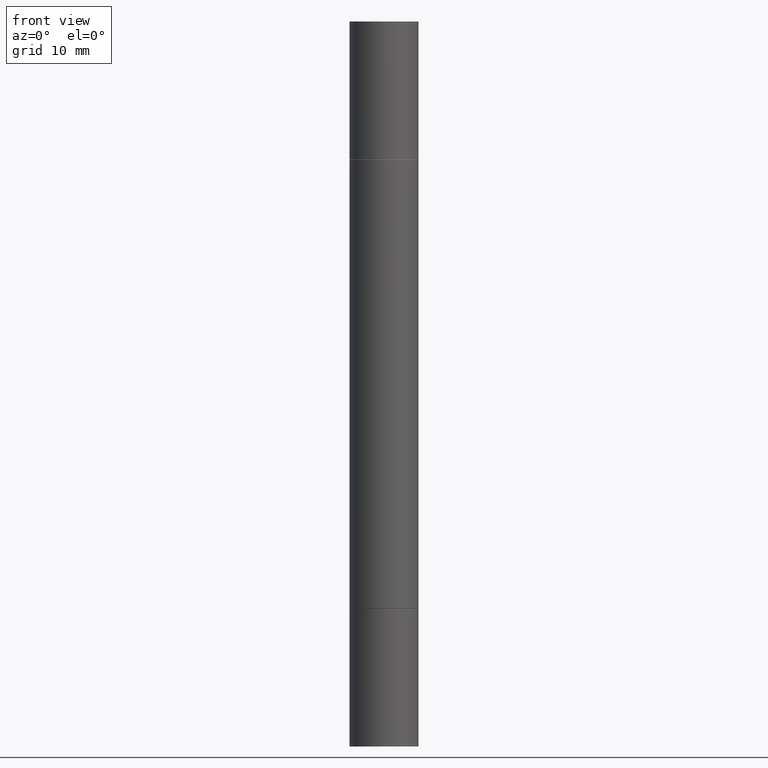
[diagram: clean part render]
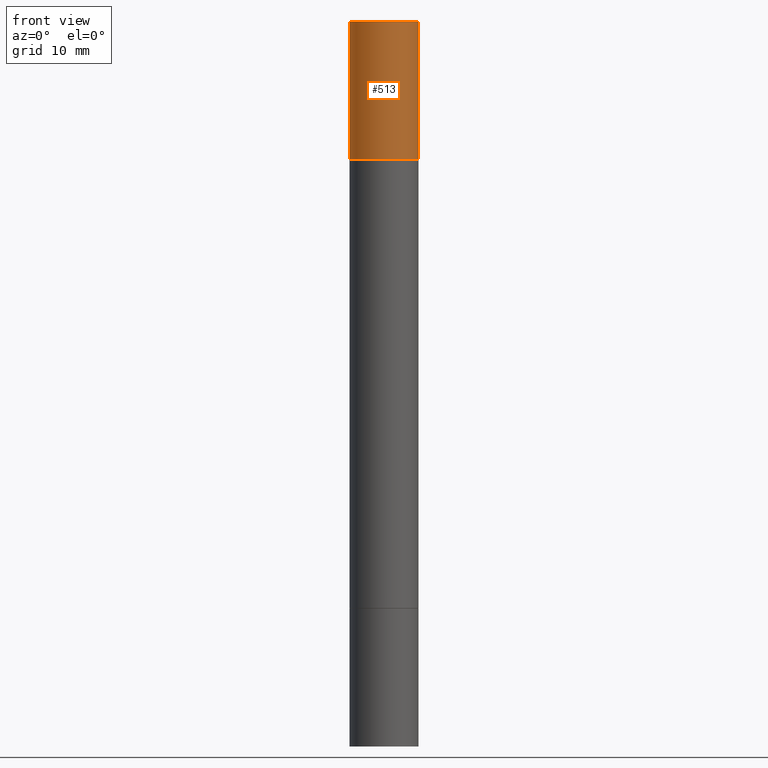
[diagram: same view with one face highlighted and labeled with its STEP entity id]
A machine part, front view. The second image highlights one B-rep face of the part: STEP entity #513.
In plain terms, the highlighted cylindrical surface (edge-blend (fillet) strip) has radius 2.9997 mm, axis along (-0, -0, -1).
Its self-contained STEP definition (entity closure, byte-faithful):
#9 = CARTESIAN_POINT ( 'NONE',  ( -0.1180999999999999966, -7.851443812715413599E-15, -2.480299999999999727 ) ) ;
#38 = CARTESIAN_POINT ( 'NONE',  ( 0.1180999999999999966, -9.486356518486979401E-15, -2.480299999999999727 ) ) ;
#54 = VERTEX_POINT ( 'NONE', #192 ) ;
#60 = DIRECTION ( 'NONE',  ( -2.445468806185136877E-29, -3.492890411551753071E-15, -1.000000000000000000 ) ) ;
#123 = FACE_OUTER_BOUND ( 'NONE', #289, .T. ) ;
#131 = ORIENTED_EDGE ( 'NONE', *, *, #155, .T. ) ;
#139 = ORIENTED_EDGE ( 'NONE', *, *, #383, .F. ) ;
#150 = DIRECTION ( 'NONE',  ( 2.445468806185136597E-29, 3.492890411551752677E-15, 1.000000000000000000 ) ) ;
#155 = EDGE_CURVE ( 'NONE', #54, #574, #204, .T. ) ;
#157 = CARTESIAN_POINT ( 'NONE',  ( 6.065496279980994755E-29, 1.747461519580534218E-18, 5.463695987328526437E-16 ) ) ;
#189 = AXIS2_PLACEMENT_3D ( 'NONE', #253, #619, #463 ) ;
#192 = CARTESIAN_POINT ( 'NONE',  ( -0.1180999999999999966, -1.304844015212474234E-17, -0.4723999999999995980 ) ) ;
#203 = VERTEX_POINT ( 'NONE', #290 ) ;
#204 = CIRCLE ( 'NONE', #581, 0.1180999999999999966 ) ;
#253 = CARTESIAN_POINT ( 'NONE',  ( 0.000000000000000000, -8.661668626252231138E-15, -2.480299999999999727 ) ) ;
#277 = EDGE_CURVE ( 'NONE', #203, #54, #635, .T. ) ;
#289 = EDGE_LOOP ( 'NONE', ( #335, #443, #131, #139 ) ) ;
#290 = CARTESIAN_POINT ( 'NONE',  ( -0.1180999999999999966, -1.304844015212474234E-17, 5.463695987328556019E-16 ) ) ;
#292 = EDGE_CURVE ( 'NONE', #203, #673, #452, .T. ) ;
#301 = CARTESIAN_POINT ( 'NONE',  ( 4.910256815939136430E-29, -1.648293968897467768E-15, -0.4723999999999995980 ) ) ;
#319 = AXIS2_PLACEMENT_3D ( 'NONE', #157, #150, #587 ) ;
#335 = ORIENTED_EDGE ( 'NONE', *, *, #292, .F. ) ;
#340 = DIRECTION ( 'NONE',  ( 1.000000000000000000, -6.982962677686265133E-15, 0.000000000000000000 ) ) ;
#347 = LINE ( 'NONE', #38, #649 ) ;
#373 = CARTESIAN_POINT ( 'NONE',  ( 0.1180999999999999966, -8.229404307151675296E-16, 5.463695987328526437E-16 ) ) ;
#374 = CARTESIAN_POINT ( 'NONE',  ( 0.1180999999999999966, -2.472981861132215636E-15, -0.4723999999999995980 ) ) ;
#383 = EDGE_CURVE ( 'NONE', #673, #574, #347, .T. ) ;
#443 = ORIENTED_EDGE ( 'NONE', *, *, #277, .T. ) ;
#452 = CIRCLE ( 'NONE', #319, 0.1180999999999999966 ) ;
#460 = CYLINDRICAL_SURFACE ( 'NONE', #189, 0.1180999999999999966 ) ;
#463 = DIRECTION ( 'NONE',  ( 1.000000000000000000, -6.982962677686265133E-15, 0.000000000000000000 ) ) ;
#513 = ADVANCED_FACE ( 'NONE', ( #123 ), #460, .T. ) ;
#540 = VECTOR ( 'NONE', #60, 39.37007874015748143 ) ;
#574 = VERTEX_POINT ( 'NONE', #374 ) ;
#581 = AXIS2_PLACEMENT_3D ( 'NONE', #301, #618, #340 ) ;
#587 = DIRECTION ( 'NONE',  ( 1.000000000000000000, -6.982962677686266711E-15, 0.000000000000000000 ) ) ;
#618 = DIRECTION ( 'NONE',  ( 2.445468806185136597E-29, 3.492890411551752677E-15, 1.000000000000000000 ) ) ;
#619 = DIRECTION ( 'NONE',  ( -2.445468806185136597E-29, -3.492890411551752677E-15, -1.000000000000000000 ) ) ;
#635 = LINE ( 'NONE', #9, #540 ) ;
#649 = VECTOR ( 'NONE', #669, 39.37007874015748143 ) ;
#669 = DIRECTION ( 'NONE',  ( -2.445468806185136877E-29, -3.492890411551753071E-15, -1.000000000000000000 ) ) ;
#673 = VERTEX_POINT ( 'NONE', #373 ) ;